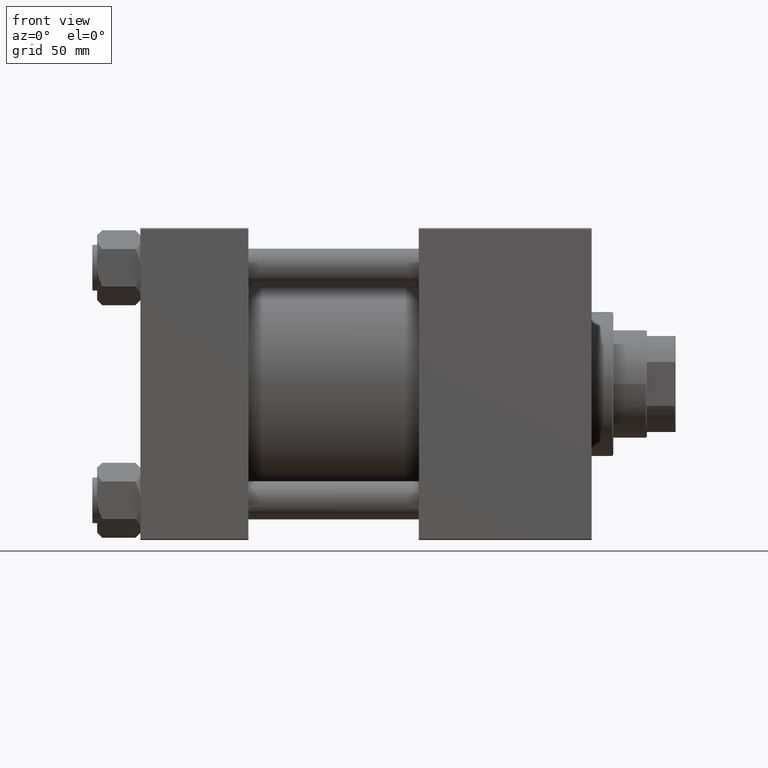
[diagram: clean part render]
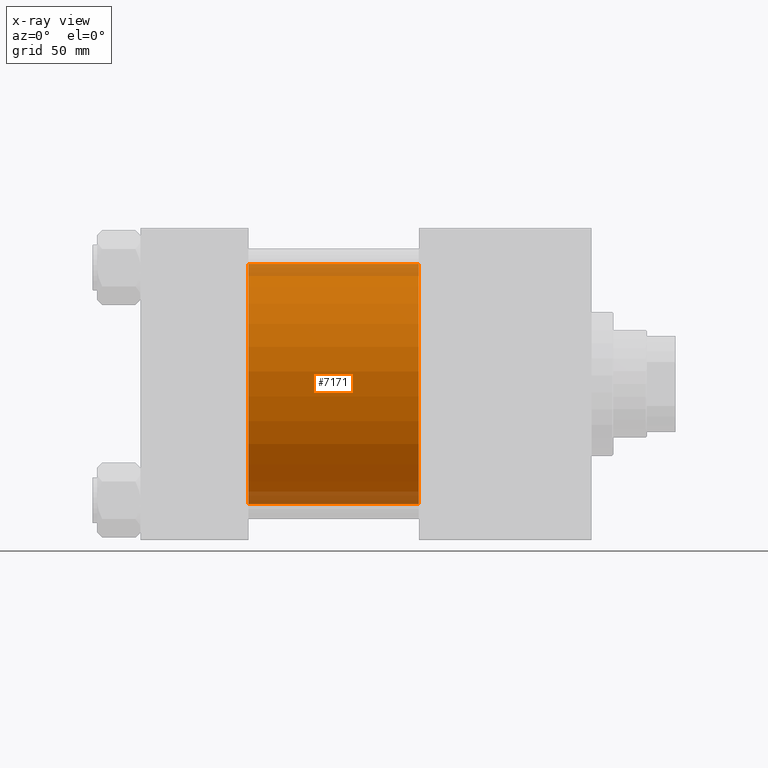
[diagram: x-ray — body ghosted, one internal face saturated and labeled with its STEP entity id]
A machine part, front view, then the same camera in x-ray: the body is ghosted and one INTERNAL B-rep face — a face not visible from any outside direction — is saturated and labeled: STEP entity #7171.
In plain terms, the highlighted cylindrical surface (partial cylindrical patch) has radius 50 mm, axis along (-1, -0, -0).
Its self-contained STEP definition (entity closure, byte-faithful):
#2246 = CARTESIAN_POINT ( 'NONE',  ( 115.9999999999999858, 3.521148781771555838E-15, -50.00000000000000000 ) ) ;
#3710 = ORIENTED_EDGE ( 'NONE', *, *, #49094, .T. ) ;
#4221 = AXIS2_PLACEMENT_3D ( 'NONE', #37978, #22913, #23424 ) ;
#4348 = ORIENTED_EDGE ( 'NONE', *, *, #46333, .T. ) ;
#6872 = CARTESIAN_POINT ( 'NONE',  ( 45.00000000000000000, -2.602085213965210642E-15, 0.000000000000000000 ) ) ;
#6916 = DIRECTION ( 'NONE',  ( -1.000000000000000000, -0.000000000000000000, -0.000000000000000000 ) ) ;
#6970 = VERTEX_POINT ( 'NONE', #40927 ) ;
#7171 = ADVANCED_FACE ( 'NONE', ( #34188 ), #17647, .F. ) ;
#7897 = ORIENTED_EDGE ( 'NONE', *, *, #47840, .F. ) ;
#8923 = ORIENTED_EDGE ( 'NONE', *, *, #45583, .F. ) ;
#11682 = DIRECTION ( 'NONE',  ( 0.000000000000000000, 0.000000000000000000, 1.000000000000000000 ) ) ;
#15733 = VECTOR ( 'NONE', #6916, 1000.000000000000000 ) ;
#17147 = CARTESIAN_POINT ( 'NONE',  ( 115.9999999999999858, -2.602085213965210642E-15, 50.00000000000000000 ) ) ;
#17582 = VERTEX_POINT ( 'NONE', #2246 ) ;
#17647 = CYLINDRICAL_SURFACE ( 'NONE', #47990, 50.00000000000000000 ) ;
#18103 = CIRCLE ( 'NONE', #4221, 50.00000000000000000 ) ;
#20979 = LINE ( 'NONE', #17147, #46746 ) ;
#22243 = AXIS2_PLACEMENT_3D ( 'NONE', #6872, #26864, #22505 ) ;
#22505 = DIRECTION ( 'NONE',  ( 0.000000000000000000, 0.000000000000000000, -1.000000000000000000 ) ) ;
#22865 = VERTEX_POINT ( 'NONE', #30828 ) ;
#22913 = DIRECTION ( 'NONE',  ( 1.000000000000000000, 0.000000000000000000, 0.000000000000000000 ) ) ;
#23424 = DIRECTION ( 'NONE',  ( 0.000000000000000000, 0.000000000000000000, -1.000000000000000000 ) ) ;
#26392 = CARTESIAN_POINT ( 'NONE',  ( 115.9999999999999858, 3.521148781771555838E-15, -50.00000000000000000 ) ) ;
#26864 = DIRECTION ( 'NONE',  ( 1.000000000000000000, 0.000000000000000000, 0.000000000000000000 ) ) ;
#29527 = EDGE_LOOP ( 'NONE', ( #3710, #4348, #7897, #8923 ) ) ;
#30828 = CARTESIAN_POINT ( 'NONE',  ( 45.00000000000000000, -2.602085213965210642E-15, 50.00000000000000000 ) ) ;
#32744 = DIRECTION ( 'NONE',  ( -1.000000000000000000, -0.000000000000000000, -0.000000000000000000 ) ) ;
#33243 = DIRECTION ( 'NONE',  ( -1.000000000000000000, -0.000000000000000000, -0.000000000000000000 ) ) ;
#34044 = LINE ( 'NONE', #26392, #15733 ) ;
#34188 = FACE_OUTER_BOUND ( 'NONE', #29527, .T. ) ;
#37978 = CARTESIAN_POINT ( 'NONE',  ( 115.9999999999999858, -2.602085213965210642E-15, 0.000000000000000000 ) ) ;
#40927 = CARTESIAN_POINT ( 'NONE',  ( 115.9999999999999858, -2.602085213965210642E-15, 50.00000000000000000 ) ) ;
#42722 = CIRCLE ( 'NONE', #22243, 50.00000000000000000 ) ;
#45255 = CARTESIAN_POINT ( 'NONE',  ( 45.00000000000000000, 3.521148781771555838E-15, -50.00000000000000000 ) ) ;
#45583 = EDGE_CURVE ( 'NONE', #6970, #22865, #20979, .T. ) ;
#46228 = CARTESIAN_POINT ( 'NONE',  ( 115.9999999999999858, -2.602085213965210642E-15, 0.000000000000000000 ) ) ;
#46333 = EDGE_CURVE ( 'NONE', #17582, #47405, #34044, .T. ) ;
#46746 = VECTOR ( 'NONE', #32744, 1000.000000000000000 ) ;
#47405 = VERTEX_POINT ( 'NONE', #45255 ) ;
#47840 = EDGE_CURVE ( 'NONE', #22865, #47405, #42722, .T. ) ;
#47990 = AXIS2_PLACEMENT_3D ( 'NONE', #46228, #33243, #11682 ) ;
#49094 = EDGE_CURVE ( 'NONE', #6970, #17582, #18103, .T. ) ;